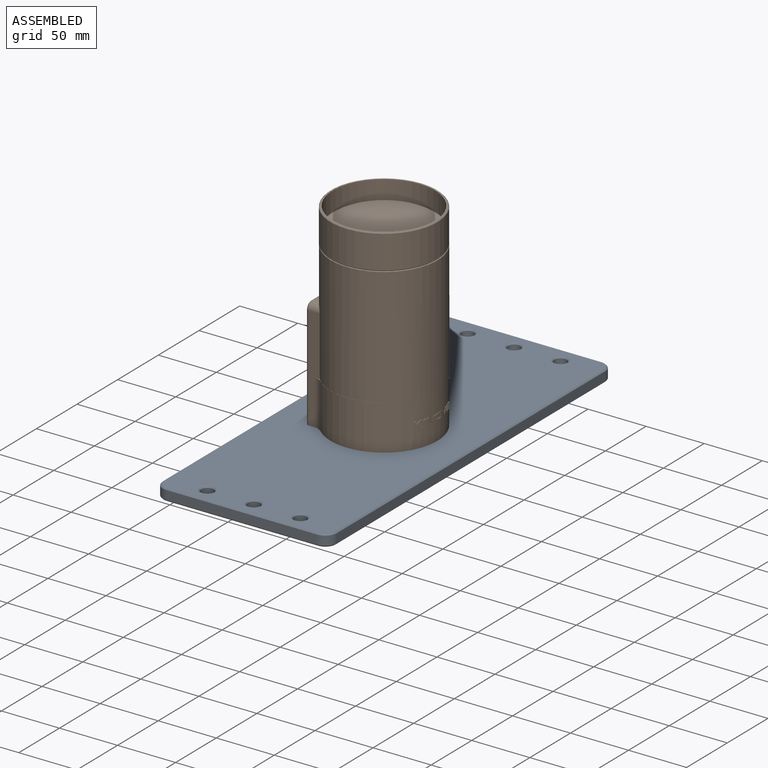
[diagram: assembled view]
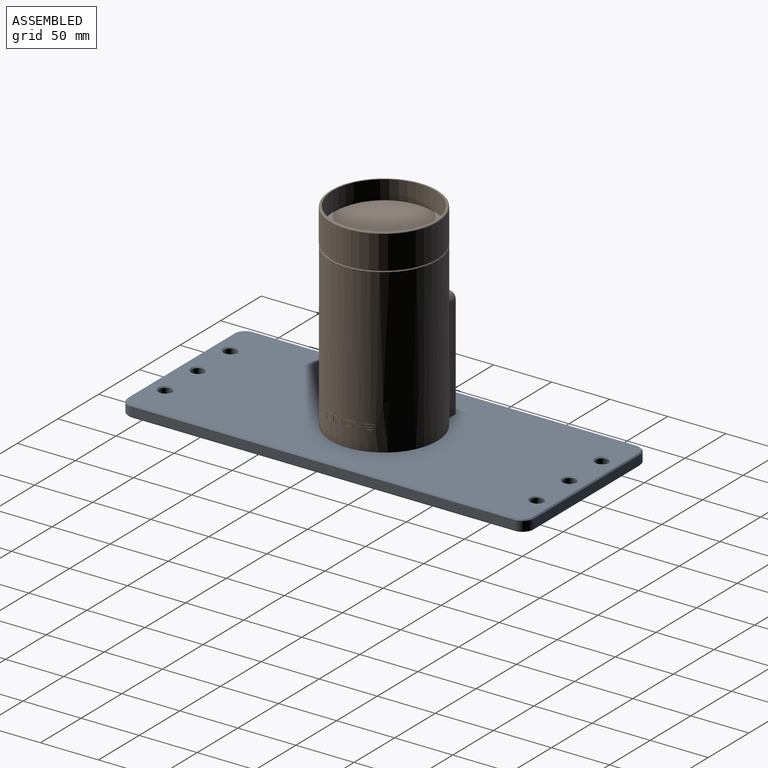
[diagram: assembled view, second angle]
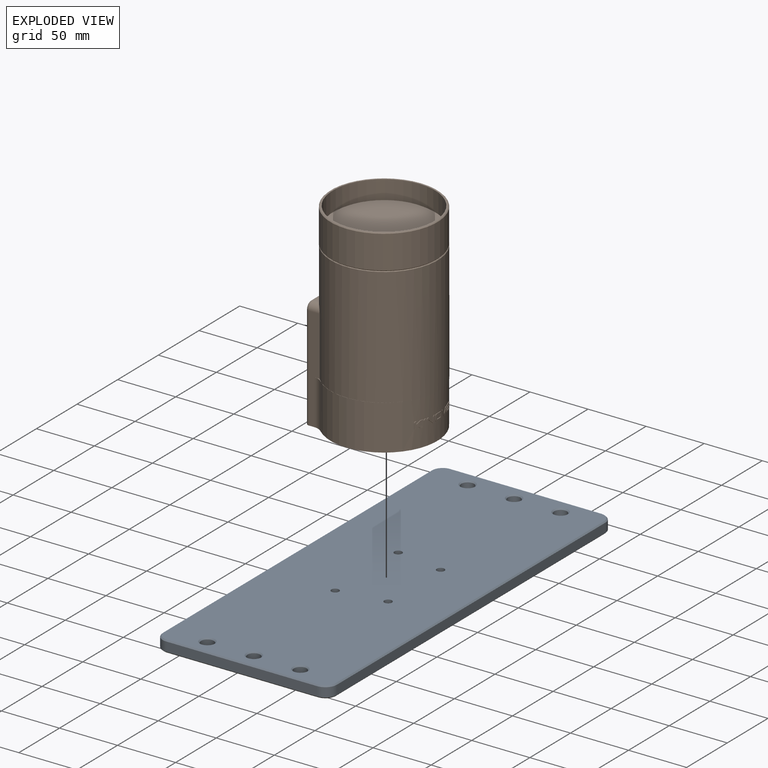
[diagram: exploded view]
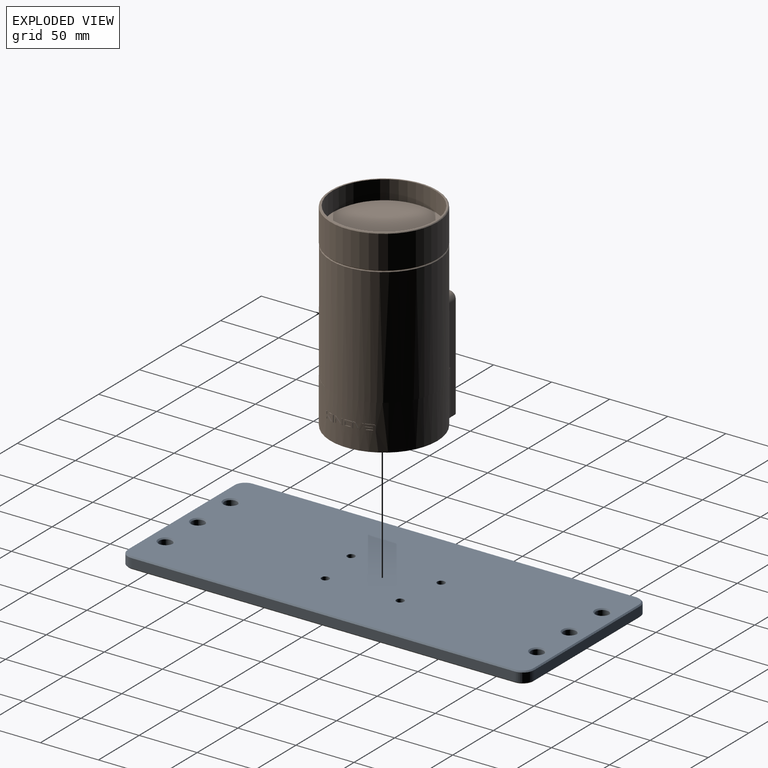
[diagram: exploded view, second angle]
ASSEMBLY  parts=2 mates=2
PART A: 66 faces, bbox 150x350x10 mm
  f0: plane 348x148mm, normal (0,0,1), area 50698.3mm2, adj f10,f11,f12,f13,f14,f15,f16,f17
  f1: plane 348x148mm, normal (0,0,-1), area 50501.2mm2, adj f18,f19,f20,f21,f22,f23,f24,f25
  f2: plane 330x8mm, normal (1,0,0), area 2640mm2, adj f7,f8,f17,f25
  f3: plane 130x8mm, normal (0,1,0), area 1040mm2, adj f8,f9,f14,f22
  f4: plane 330x8mm, normal (-1,0,0), area 2640mm2, adj f6,f9,f10,f18
  f5: plane 130x8mm, normal (0,-1,0), area 1040mm2, adj f6,f7,f13,f21
  f6: cylinder r=10mm len=10mm, axis (0,0,-1), area 125.7mm2, adj f4,f5,f11,f19
  f7: cylinder r=10mm len=10mm, axis (0,0,-1), area 125.7mm2, adj f2,f5,f15,f23
  f8: cylinder r=10mm len=10mm, axis (0,0,-1), area 125.7mm2, adj f2,f3,f16,f24
  f9: cylinder r=10mm len=10mm, axis (0,0,-1), area 125.7mm2, adj f3,f4,f12,f20
  f10: plane 330x1mm, normal (-0.71,0,0.71), area 466.7mm2, adj f0,f4,f11,f12
  f11: cone r=9mm half-angle=45deg, axis (0,0,-1), area 21.1mm2, adj f0,f6,f10,f13
  f12: cone r=9mm half-angle=45deg, axis (0,0,-1), area 21.1mm2, adj f0,f9,f10,f14
  f13: plane 130x1mm, normal (0,-0.71,0.71), area 183.8mm2, adj f0,f5,f11,f15
  f14: plane 130x1mm, normal (0,0.71,0.71), area 183.8mm2, adj f0,f3,f12,f16
  f15: cone r=9mm half-angle=45deg, axis (0,0,-1), area 21.1mm2, adj f0,f7,f13,f17
  f16: cone r=9mm half-angle=45deg, axis (0,0,-1), area 21.1mm2, adj f0,f8,f14,f17
  f17: plane 330x1mm, normal (0.71,0,0.71), area 466.7mm2, adj f0,f2,f15,f16
  f18: plane 330x1mm, normal (-0.71,0,-0.71), area 466.7mm2, adj f1,f4,f19,f20
  f19: cone r=9mm half-angle=45deg, axis (0,0,1), area 21.1mm2, adj f1,f6,f18,f21
  f20: cone r=9mm half-angle=45deg, axis (0,0,1), area 21.1mm2, adj f1,f9,f18,f22
  f21: plane 130x1mm, normal (0,-0.71,-0.71), area 183.8mm2, adj f1,f5,f19,f23
  f22: plane 130x1mm, normal (0,0.71,-0.71), area 183.8mm2, adj f1,f3,f20,f24
  f23: cone r=9mm half-angle=45deg, axis (0,0,1), area 21.1mm2, adj f1,f7,f21,f25
  f24: cone r=9mm half-angle=45deg, axis (0,0,1), area 21.1mm2, adj f1,f8,f22,f25
  f25: plane 330x1mm, normal (0.71,0,-0.71), area 466.7mm2, adj f1,f2,f23,f24
  f26: cylinder r=3.3mm len=6.6mm, axis (0,0,1), area 82.9mm2, adj f1,f27
  f27: plane 11x11mm, normal (0,0,1), area 60.8mm2, adj f26,f28
  f28: cylinder r=5.5mm len=11mm, axis (0,0,1), area 172.8mm2, adj f27,f57
  f29: cylinder r=3.3mm len=6.6mm, axis (0,0,1), area 82.9mm2, adj f1,f30
  f30: plane 11x11mm, normal (0,0,1), area 60.8mm2, adj f29,f31
  f31: cylinder r=5.5mm len=11mm, axis (0,0,1), area 172.8mm2, adj f30,f56
  f32: cylinder r=3.3mm len=6.6mm, axis (0,0,1), area 82.9mm2, adj f1,f33
  f33: plane 11x11mm, normal (0,0,1), area 60.8mm2, adj f32,f34
  f34: cylinder r=5.5mm len=11mm, axis (0,0,1), area 172.8mm2, adj f33,f59
  f35: cylinder r=3.3mm len=6.6mm, axis (0,0,1), area 82.9mm2, adj f1,f36
  f36: plane 11x11mm, normal (0,0,1), area 60.8mm2, adj f35,f37
  f37: cylinder r=5.5mm len=11mm, axis (0,0,1), area 172.8mm2, adj f36,f58
  f38: cylinder r=3.3mm len=6.6mm, axis (0,0,-1), area 82.9mm2, adj f0,f39
  f39: plane 11x11mm, normal (0,0,-1), area 60.8mm2, adj f38,f40
  f40: cylinder r=5.5mm len=11mm, axis (0,0,-1), area 172.8mm2, adj f39,f65
  f41: cylinder r=3.3mm len=6.6mm, axis (0,0,-1), area 82.9mm2, adj f0,f42
  f42: plane 11x11mm, normal (0,0,-1), area 60.8mm2, adj f41,f43
  f43: cylinder r=5.5mm len=11mm, axis (0,0,-1), area 172.8mm2, adj f42,f60
  f44: cylinder r=3.3mm len=6.6mm, axis (0,0,-1), area 82.9mm2, adj f0,f45
  f45: plane 11x11mm, normal (0,0,-1), area 60.8mm2, adj f44,f46
  f46: cylinder r=5.5mm len=11mm, axis (0,0,-1), area 172.8mm2, adj f45,f61
  f47: cylinder r=3.3mm len=6.6mm, axis (0,0,-1), area 82.9mm2, adj f0,f48
  f48: plane 11x11mm, normal (0,0,-1), area 60.8mm2, adj f47,f49
  f49: cylinder r=5.5mm len=11mm, axis (0,0,-1), area 172.8mm2, adj f48,f62
  f50: cylinder r=3.3mm len=6.6mm, axis (0,0,-1), area 82.9mm2, adj f0,f51
  f51: plane 11x11mm, normal (0,0,-1), area 60.8mm2, adj f50,f52
  f52: cylinder r=5.5mm len=11mm, axis (0,0,-1), area 172.8mm2, adj f51,f63
  f53: cylinder r=3.3mm len=6.6mm, axis (0,0,-1), area 82.9mm2, adj f0,f54
  f54: plane 11x11mm, normal (0,0,-1), area 60.8mm2, adj f53,f55
  f55: cylinder r=5.5mm len=11mm, axis (0,0,-1), area 172.8mm2, adj f54,f64
  f56: cone r=5.5mm half-angle=45deg, axis (0,0,1), area 53.3mm2, adj f0,f31
  f57: cone r=5.5mm half-angle=45deg, axis (0,0,1), area 53.3mm2, adj f0,f28
  f58: cone r=5.5mm half-angle=45deg, axis (0,0,1), area 53.3mm2, adj f0,f37
  f59: cone r=5.5mm half-angle=45deg, axis (0,0,1), area 53.3mm2, adj f0,f34
  f60: cone r=5.5mm half-angle=45deg, axis (0,0,-1), area 53.3mm2, adj f1,f43
  f61: cone r=5.5mm half-angle=45deg, axis (0,0,-1), area 53.3mm2, adj f1,f46
  f62: cone r=5.5mm half-angle=45deg, axis (0,0,-1), area 53.3mm2, adj f1,f49
  f63: cone r=5.5mm half-angle=45deg, axis (0,0,-1), area 53.3mm2, adj f1,f52
  f64: cone r=5.5mm half-angle=45deg, axis (0,0,-1), area 53.3mm2, adj f1,f55
  f65: cone r=5.5mm half-angle=45deg, axis (0,0,-1), area 53.3mm2, adj f1,f40
PART B: 298 faces, bbox 93x171x93 mm
  f0: cone r=46mm half-angle=45deg, axis (0,-1,0), area 243.6mm2, adj f5,f166
  f1: cone r=45.4mm half-angle=45deg, axis (0,1,0), area 232.8mm2, adj f5,f15,f165
  f2: cone r=40mm half-angle=45deg, axis (0,1,0), area 359.9mm2, adj f3,f170
  f3: cylinder r=40mm len=80mm, axis (0,1,0), area 848.2mm2, adj f2,f167
  f4: cylinder r=44mm len=88mm, axis (0,-1,0), area 6443.7mm2, adj f166,f168,f169,f170
  f5: cylinder r=46mm len=92mm, axis (0,-1,0), area 8266.2mm2, adj f0,f1
  f6: cone r=2.5mm half-angle=59deg, axis (0,-1,0), area 22.9mm2, adj f24
  f7: cone r=1.25mm half-angle=59deg, axis (0,-1,0), area 5.7mm2, adj f23
  f8: cone r=2.5mm half-angle=59deg, axis (0,-1,0), area 22.9mm2, adj f22
  f9: cone r=1.25mm half-angle=59deg, axis (0,-1,0), area 5.7mm2, adj f21
  f10: cone r=2.5mm half-angle=59deg, axis (0,-1,0), area 22.9mm2, adj f20
  f11: cone r=1.25mm half-angle=59deg, axis (0,-1,0), area 5.7mm2, adj f19
  f12: cone r=1.25mm half-angle=59deg, axis (0,-1,0), area 5.7mm2, adj f18
  f13: cone r=2.5mm half-angle=59deg, axis (0,-1,0), area 22.9mm2, adj f17
  f14: cylinder r=46mm len=101.65mm, axis (0,-1,0), area 25590.9mm2, adj f15,f25,f26,f34,f37,f146,f147,f148
  f15: cone r=45.4mm half-angle=45deg, axis (0,-1,0), area 254.5mm2, adj f1,f14,f165
  f16: cylinder r=46mm len=92mm, axis (0,-1,0), area 8118.8mm2, adj f25,f29,f35,f36,f39,f40,f41,f42
  f17: cylinder r=2.5mm len=16.8mm, axis (0,-1,0), area 263.9mm2, adj f13,f29
  f18: cylinder r=1.25mm len=9.3mm, axis (0,-1,0), area 73mm2, adj f12,f29
  f19: cylinder r=1.25mm len=9.3mm, axis (0,-1,0), area 73mm2, adj f11,f29
  f20: cylinder r=2.5mm len=16.8mm, axis (0,-1,0), area 263.9mm2, adj f10,f29
  f21: cylinder r=1.25mm len=9.3mm, axis (0,-1,0), area 73mm2, adj f9,f29
  f22: cylinder r=2.5mm len=16.8mm, axis (0,-1,0), area 263.9mm2, adj f8,f29
  f23: cylinder r=1.25mm len=9.3mm, axis (0,-1,0), area 73mm2, adj f7,f29
  f24: cylinder r=2.5mm len=16.8mm, axis (0,-1,0), area 263.9mm2, adj f6,f29
  f25: plane 80.95x29.16mm, normal (0,1,0), area 13.2mm2, adj f14,f16,f36,f37
  f26: plane 6x2mm, normal (0,1,0), area 1.9mm2, adj f14,f34,f35
  f27: plane 2x0.1mm, normal (0,1,0), area 0.2mm2, adj f31,f158,f159,f162
  f28: plane 2x0.1mm, normal (0,1,0), area 0.2mm2, adj f32,f160,f161,f163
  f29: plane 92.05x92mm, normal (0,-1,0), area 6786.3mm2, adj f16,f17,f18,f19,f20,f21,f22,f23
  f30: cylinder r=3mm len=89.3mm, axis (0,-1,0), area 420.8mm2, adj f29,f31,f37,f144,f159
  f31: plane 38.8x0.1mm, normal (1,0,0), area 3.9mm2, adj f27,f29,f30,f162
  f32: plane 38.8x0.1mm, normal (1,0,0), area 3.9mm2, adj f28,f29,f33,f163
  f33: cylinder r=3mm len=89.3mm, axis (0,-1,0), area 420.8mm2, adj f29,f32,f34,f145,f161
  f34: plane 89.3x8.93mm, normal (0,0,1), area 639.6mm2, adj f14,f26,f29,f33,f35,f150
  f35: cylinder r=10mm len=38.8mm, axis (0,-1,0), area 290.7mm2, adj f16,f26,f29,f34,f164
  f36: cylinder r=10mm len=38.8mm, axis (0,-1,0), area 290.7mm2, adj f16,f25,f29,f37
  f37: plane 89.3x9.22mm, normal (0,0,-1), area 654mm2, adj f14,f25,f29,f30,f36,f146
  f38: cylinder r=46.45mm len=6.92mm, axis (0,-1,0), area 23.9mm2, adj f39,f40,f41,f42,f43,f44,f45,f46
  f39: plane 0.57x0.18mm, normal (0,0.79,0.62), area 0.1mm2, adj f16,f38,f40,f60
  f40: plane 0.51x0.06mm, normal (0,-0.78,0.62), area 0mm2, adj f16,f38,f39,f41
  f41: plane 3.69x2.9mm, normal (0,-0.79,0.62), area 2.2mm2, adj f16,f38,f40,f42
  f42: plane 1.86x1.14mm, normal (0,1,0), area 0.9mm2, adj f16,f38,f41,f43
  f43: extruded ~0.82x0.8mm, area 0.4mm2, adj f16,f38,f42,f44
  f44: plane 2.81x2.13mm, normal (0,0.8,-0.6), area 1.7mm2, adj f16,f38,f43,f45
  f45: plane 2.47x0.5mm, normal (0,0,1), area 1.2mm2, adj f16,f38,f44,f46
  f46: plane 0.57x0.14mm, normal (0,1,0), area 0.1mm2, adj f16,f38,f45,f47
  f47: cylinder r=1.31mm len=1.31mm, axis (-1,0,0), area 1mm2, adj f16,f38,f46,f48
  f48: plane 4.13x0.51mm, normal (0,0,-1), area 2.1mm2, adj f16,f38,f47,f49
  f49: extruded ~0.51x0.48mm, area 0.2mm2, adj f16,f38,f48,f50
  f50: plane 1.45x1.23mm, normal (0,-1,0), area 0.7mm2, adj f16,f38,f49,f51
  f51: extruded ~0.5x0.31mm, area 0.2mm2, adj f16,f38,f50,f52
  f52: plane 0.66x0.5mm, normal (0,0,1), area 0.3mm2, adj f16,f38,f51,f53
  f53: extruded ~0.93x0.68mm, area 0.5mm2, adj f16,f38,f52,f54
  f54: cylinder r=1.22mm len=0.56mm, axis (1,0,0), area 0.1mm2, adj f16,f38,f53,f55
  f55: plane 0.59x0.21mm, normal (0,-0.8,-0.6), area 0.1mm2, adj f16,f38,f54,f56
  f56: plane 0.81x0.71mm, normal (0,-0.8,-0.6), area 0.4mm2, adj f16,f38,f55,f57
  f57: plane 1.34x1.05mm, normal (0,-0.8,-0.6), area 0.8mm2, adj f16,f38,f56,f58
  f58: extruded ~0.82x0.8mm, area 0.4mm2, adj f16,f38,f57,f59
  f59: plane 1.86x1.14mm, normal (0,-1,0), area 0.9mm2, adj f16,f38,f58,f60
  f60: plane 3.58x2.8mm, normal (0,0.79,0.62), area 2.2mm2, adj f16,f38,f39,f59
  f61: plane 1.61x0.51mm, normal (0,0,1), area 0.8mm2, adj f16,f62,f75,f76
  f62: plane 6.65x3.33mm, normal (0,-1,0), area 3.3mm2, adj f16,f61,f63,f76
  f63: cylinder r=1.31mm len=1.31mm, axis (-1,0,0), area 1mm2, adj f16,f62,f64,f76
  f64: plane 0.96x0.47mm, normal (0,0,-1), area 0.4mm2, adj f16,f63,f65,f76
  f65: extruded ~1.32x1.31mm, area 1mm2, adj f16,f64,f66,f76
  f66: plane 5.2x2.6mm, normal (0,1,0), area 2.5mm2, adj f16,f65,f67,f76
  f67: plane 0.68x0.5mm, normal (0,0,-1), area 0.3mm2, adj f16,f66,f68,f76
  f68: cylinder r=0.14mm len=0.57mm, axis (1,0,0), area 0.1mm2, adj f16,f67,f69,f76
  f69: plane 6.19x2.9mm, normal (0,-1,0), area 3mm2, adj f16,f68,f70,f76
  f70: plane 0.47x0.14mm, normal (0,0,-1), area 0.1mm2, adj f16,f69,f71,f76
  f71: cylinder r=1.31mm len=1.31mm, axis (-1,0,0), area 1mm2, adj f16,f70,f72,f76
  f72: plane 5.16x2.61mm, normal (0,1,0), area 2.5mm2, adj f16,f71,f73,f76
  f73: cylinder r=1.31mm len=1.31mm, axis (-1,0,0), area 1mm2, adj f16,f72,f74,f76
  f74: plane 2.93x0.51mm, normal (0,0,1), area 1.5mm2, adj f16,f73,f75,f76
  f75: plane 0.51x0mm, normal (0,0.89,-0.45), area 0mm2, adj f16,f61,f74,f76
  f76: cylinder r=46.45mm len=7.96mm, axis (0,-1,0), area 38.3mm2, adj f61,f62,f63,f64,f65,f66,f67,f68
  f77: plane 4.77x2.44mm, normal (0,-1,0), area 2.3mm2, adj f76,f78,f83,f141
  f78: cylinder r=0.14mm len=0.57mm, axis (-1,0,0), area 0.1mm2, adj f76,f77,f79,f141
  f79: plane 0.68x0.5mm, normal (0,0,-1), area 0.3mm2, adj f76,f78,f80,f141
  f80: plane 4.92x2.51mm, normal (0,1,0), area 2.4mm2, adj f76,f79,f81,f141
  f81: cylinder r=0.14mm len=0.52mm, axis (-1,0,0), area 0.1mm2, adj f76,f80,f82,f141
  f82: plane 0.54x0.48mm, normal (0,0,1), area 0.3mm2, adj f76,f81,f83,f141
  f83: cylinder r=0.14mm len=0.53mm, axis (-1,0,0), area 0.1mm2, adj f76,f77,f82,f141
  f84: cylinder r=46.45mm len=5.92mm, axis (0,-1,0), area 8.5mm2, adj f85,f86,f87,f88,f89
  f85: cylinder r=1.31mm len=1.31mm, axis (-1,0,0), area 1mm2, adj f16,f84,f86,f89
  f86: plane 4.61x0.47mm, normal (0,0,-1), area 2.2mm2, adj f16,f84,f85,f87
  f87: plane 1.45x0.9mm, normal (0,-1,0), area 0.7mm2, adj f16,f84,f86,f88
  f88: plane 5.92x0.47mm, normal (0,0,1), area 2.8mm2, adj f16,f84,f87,f89
  f89: plane 0.51x0.14mm, normal (0,1,0), area 0.1mm2, adj f16,f84,f85,f88
  f90: cylinder r=46.45mm len=7.81mm, axis (0,-1,0), area 25.4mm2, adj f91,f92,f93,f94,f95,f96,f97,f98
  f91: cylinder r=1.31mm len=1.31mm, axis (-1,0,0), area 0.9mm2, adj f16,f90,f92,f109
  f92: plane 2.88x0.45mm, normal (0,0,-1), area 1.3mm2, adj f16,f90,f91,f93
  f93: plane 0.45x0mm, normal (0,0.24,0.97), area 0mm2, adj f16,f90,f92,f94
  f94: plane 0.45x0mm, normal (0,0,-1), area 0mm2, adj f16,f90,f93,f95
  f95: plane 4.02x3.64mm, normal (0,0.74,0.67), area 2.5mm2, adj f16,f90,f94,f96
  f96: cylinder r=1.72mm len=0.47mm, axis (1,0,0), area 0mm2, adj f16,f90,f95,f97
  f97: extruded ~0.96x0.66mm, area 0.5mm2, adj f16,f90,f96,f98
  f98: plane 0.47x0.02mm, normal (0,1,0.02), area 0mm2, adj f16,f90,f97,f99
  f99: cylinder r=1.31mm len=1.31mm, axis (-1,0,0), area 1mm2, adj f16,f90,f98,f100
  f100: plane 4.55x0.46mm, normal (0,0,-1), area 2.1mm2, adj f16,f90,f99,f101
  f101: plane 0.5x0.14mm, normal (0,-1,0), area 0.1mm2, adj f16,f90,f100,f102
  f102: cylinder r=1.31mm len=1.31mm, axis (-1,0,0), area 1mm2, adj f16,f90,f101,f103
  f103: plane 2.92x0.46mm, normal (0,0,1), area 1.3mm2, adj f16,f90,f102,f104
  f104: plane 4.34x3.94mm, normal (0,-0.74,-0.67), area 2.7mm2, adj f16,f90,f103,f105
  f105: cylinder r=1.07mm len=0.7mm, axis (-1,0,0), area 0.3mm2, adj f16,f90,f104,f106
  f106: plane 0.45x0.01mm, normal (0,-1,0), area 0mm2, adj f16,f90,f105,f107
  f107: cylinder r=1.31mm len=1.31mm, axis (-1,0,0), area 0.9mm2, adj f16,f90,f106,f108
  f108: plane 4.59x0.45mm, normal (0,0,1), area 2.1mm2, adj f16,f90,f107,f109
  f109: plane 0.46x0.14mm, normal (0,1,0), area 0.1mm2, adj f16,f90,f91,f108
  f110: cylinder r=46.45mm len=8.05mm, axis (0,-1,0), area 17.9mm2, adj f111,f112,f113,f114,f115,f116,f117,f119
  f111: plane 3.59x2.02mm, normal (0,0.49,-0.87), area 1.9mm2, adj f16,f110,f112,f123
  f112: plane 3.64x2.04mm, normal (0,0.49,0.87), area 1.9mm2, adj f16,f110,f111,f113
  f113: extruded ~1.11x0.62mm, area 0.6mm2, adj f16,f110,f112,f114
  f114: plane 0.87x0.57mm, normal (0,1,0), area 0.4mm2, adj f16,f110,f113,f115
  f115: plane 5.24x2.94mm, normal (0,-0.49,-0.87), area 2.7mm2, adj f16,f110,f114,f116
  f116: plane 0.46x0.03mm, normal (0,-0.51,-0.86), area 0mm2, adj f16,f110,f115,f117
  f117: extruded ~1.07x0.67mm, area 0.6mm2, adj f16,f110,f116,f118
  f118: plane 0.46x0mm, normal (0,-1,0), area 0mm2, adj f117,f119
  f119: extruded ~1.07x0.7mm, area 0.6mm2, adj f16,f110,f118,f120
  f120: plane 0.46x0.02mm, normal (0,-0.54,0.84), area 0mm2, adj f16,f110,f119,f121
  f121: plane 5.25x2.95mm, normal (0,-0.49,0.87), area 2.8mm2, adj f16,f110,f120,f122
  f122: plane 0.87x0.73mm, normal (0,1,0), area 0.4mm2, adj f16,f110,f121,f123
  f123: extruded ~1.14x0.77mm, area 0.6mm2, adj f16,f110,f111,f122
  f124: cylinder r=1.31mm len=1.31mm, axis (-1,0,0), area 0.9mm2, adj f16,f125,f131,f140
  f125: plane 5.19x0.62mm, normal (0,1,0), area 2.3mm2, adj f16,f124,f126,f140
  f126: cylinder r=1.31mm len=1.31mm, axis (-1,0,0), area 0.9mm2, adj f16,f125,f127,f140
  f127: plane 3.23x0.45mm, normal (0,0,-1), area 1.5mm2, adj f16,f126,f128,f140
  f128: cylinder r=1.31mm len=1.31mm, axis (-1,0,0), area 0.9mm2, adj f16,f127,f129,f140
  f129: plane 5.19x0.62mm, normal (0,-1,0), area 2.3mm2, adj f16,f128,f130,f140
  f130: cylinder r=1.31mm len=1.31mm, axis (-1,0,0), area 0.9mm2, adj f16,f129,f131,f140
  f131: plane 3.23x0.45mm, normal (0,0,1), area 1.5mm2, adj f16,f124,f130,f140
  f132: cylinder r=0.15mm len=0.46mm, axis (-1,0,0), area 0.1mm2, adj f133,f139,f140,f142
  f133: plane 2.65x0.45mm, normal (0,0,-1), area 1.2mm2, adj f132,f134,f140,f142
  f134: cylinder r=0.15mm len=0.46mm, axis (-1,0,0), area 0.1mm2, adj f133,f135,f140,f142
  f135: plane 4.62x0.59mm, normal (0,-1,0), area 2.1mm2, adj f134,f136,f140,f142
  f136: cylinder r=0.15mm len=0.45mm, axis (-1,0,0), area 0.1mm2, adj f135,f137,f140,f142
  f137: plane 2.65x0.45mm, normal (0,0,1), area 1.2mm2, adj f136,f138,f140,f142
  f138: cylinder r=0.15mm len=0.45mm, axis (-1,0,0), area 0.1mm2, adj f137,f139,f140,f142
  f139: plane 4.62x0.59mm, normal (0,1,0), area 2.1mm2, adj f132,f138,f140,f142
  f140: cylinder r=46.45mm len=7.81mm, axis (0,-1,0), area 29.8mm2, adj f124,f125,f126,f127,f128,f129,f130,f131
  f141: cylinder r=46mm len=5.06mm, axis (0,-1,0), area 4.5mm2, adj f77,f78,f79,f80,f81,f82,f83
  f142: cylinder r=46mm len=4.92mm, axis (0,-1,0), area 14.5mm2, adj f132,f133,f134,f135,f136,f137,f138,f139
  f143: plane 92.2x55.8mm, normal (1,0,0), area 5140.9mm2, adj f29,f151,f156,f157,f162,f163
  f144: torus R=3mm, axis (-1,0,0), area 36.3mm2, adj f30,f146,f148,f152
  f145: torus R=3mm, axis (-1,0,0), area 36.3mm2, adj f33,f148,f150,f153
  f146: cylinder r=6mm len=9.22mm, axis (1,0,0), area 64.9mm2, adj f14,f37,f144,f147
  f147: plane 8.98x4.55mm, normal (0,1,0), area 18.6mm2, adj f14,f146,f148
  f148: cylinder r=3mm len=50mm, axis (0,0,1), area 158.5mm2, adj f14,f144,f145,f147,f149,f154
  f149: plane 8.67x4.35mm, normal (0,1,0), area 17.2mm2, adj f14,f148,f150
  f150: cylinder r=6mm len=8.93mm, axis (-1,0,0), area 62.6mm2, adj f14,f34,f145,f149
  f151: cylinder r=3mm len=3mm, axis (1,0,0), area 9.7mm2, adj f143,f156,f158,f162
  f152: cylinder r=3mm len=3mm, axis (1,0,0), area 9.4mm2, adj f144,f154,f158,f159
  f153: cylinder r=3mm len=3mm, axis (1,0,0), area 9.4mm2, adj f145,f154,f160,f161
  f154: plane 50x2mm, normal (0,-1,0), area 65.7mm2, adj f148,f152,f153,f155,f158,f160
  f155: cylinder r=46mm len=26.42mm, axis (0,-1,0), area 2.7mm2, adj f154,f156,f158,f160
  f156: plane 49.8x2.05mm, normal (0,1,0), area 67.9mm2, adj f143,f151,f155,f157,f158,f160
  f157: cylinder r=3mm len=3mm, axis (1,0,0), area 9.7mm2, adj f143,f156,f160,f163
  f158: plane 53.5x14.95mm, normal (1,0,0), area 6.8mm2, adj f27,f151,f152,f154,f155,f156,f159,f162
  f159: plane 50.5x2mm, normal (0,0,1), area 101mm2, adj f27,f30,f152,f158
  f160: plane 53.5x14.63mm, normal (1,0,0), area 6.8mm2, adj f28,f153,f154,f155,f156,f157,f161,f163
  f161: plane 50.5x2mm, normal (0,0,-1), area 101mm2, adj f28,f33,f153,f160
  f162: plane 89.2x2.05mm, normal (0,0,-1), area 105.5mm2, adj f27,f29,f31,f143,f151,f158
  f163: plane 89.2x2.05mm, normal (0,0,1), area 105.5mm2, adj f28,f29,f32,f143,f157,f160
  f164: plane 78.21x63mm, normal (0,-1,0), area 14.8mm2, adj f14,f16,f35
  f165: plane 87.65x62.18mm, normal (0,-1,0), area 15.3mm2, adj f1,f15
  f166: plane 90.8x90.8mm, normal (0,1,0), area 393.2mm2, adj f0,f4
  f167: plane 80x80mm, normal (0,1,0), area 5026.5mm2, adj f3
  f168: plane 84.95x60.26mm, normal (0,1,0), area 14.8mm2, adj f4,f169
  f169: cylinder r=44mm len=84.88mm, axis (0,1,0), area 1794.8mm2, adj f4,f168,f170
  f170: plane 87.94x87.84mm, normal (0,1,0), area 786.3mm2, adj f2,f4,f169
  f171: cylinder r=1.25mm len=3.5mm, axis (1,0,0), area 27.5mm2, adj f172,f173
  f172: cone r=1.25mm half-angle=59deg, axis (1,0,0), area 5.7mm2, adj f171
  f173: plane 2.5x2.5mm, normal (-1,0,0), area 4.9mm2, adj f171
  f174: cylinder r=1.25mm len=3.5mm, axis (1,0,0), area 27.5mm2, adj f175,f176
  f175: cone r=1.25mm half-angle=59deg, axis (1,0,0), area 5.7mm2, adj f174
  f176: plane 2.5x2.5mm, normal (-1,0,0), area 4.9mm2, adj f174
  f177: torus R=50mm, axis (0,1,0), area 719.2mm2, adj f178,f179
  f178: cylinder r=40mm len=80mm, axis (0,1,0), area 707.1mm2, adj f177,f179
  f179: plane 80.81x80.81mm, normal (0,1,0), area 102mm2, adj f177,f178
  f180: cylinder r=2.5mm len=5mm, axis (0,-1,0), area 6.2mm2, adj f181,f182,f183
  f181: plane 5x5mm, normal (0,-1,0), area 19.6mm2, adj f180,f182
  f182: torus R=40.7mm, axis (0,1,0), area 5.3mm2, adj f180,f181,f183
  f183: plane 4.87x4.65mm, normal (0,1,0), area 13.9mm2, adj f180,f182
  f184: cylinder r=1.25mm len=2.5mm, axis (0,-1,0), area 3.9mm2, adj f185,f186,f187
  f185: plane 2.5x2.5mm, normal (0,-1,0), area 4.9mm2, adj f184
  f186: torus R=40.7mm, axis (0,1,0), area 0.6mm2, adj f184,f187
  f187: plane 2.5x2.43mm, normal (0,1,0), area 4.3mm2, adj f184,f186
  f188: cylinder r=2.5mm len=5mm, axis (0,-1,0), area 7.9mm2, adj f189,f190
  f189: plane 5x5mm, normal (0,-1,0), area 19.6mm2, adj f188
  f190: plane 5x5mm, normal (0,1,0), area 19.6mm2, adj f188
  f191: cylinder r=1.25mm len=2.5mm, axis (0,-1,0), area 3.9mm2, adj f192,f193
  f192: plane 2.5x2.5mm, normal (0,-1,0), area 4.9mm2, adj f191
  f193: plane 2.5x2.5mm, normal (0,1,0), area 4.9mm2, adj f191
  f194: cylinder r=2.5mm len=5mm, axis (0,-1,0), area 7.9mm2, adj f195,f196
  f195: plane 5x5mm, normal (0,-1,0), area 19.6mm2, adj f194
  f196: plane 5x5mm, normal (0,1,0), area 19.6mm2, adj f194
  f197: cylinder r=1.25mm len=2.5mm, axis (0,-1,0), area 3.9mm2, adj f198,f199
  f198: plane 2.5x2.5mm, normal (0,-1,0), area 4.9mm2, adj f197
  f199: plane 2.5x2.5mm, normal (0,1,0), area 4.9mm2, adj f197
  f200: cylinder r=1.25mm len=2.5mm, axis (0,-1,0), area 3.9mm2, adj f201,f202,f203
  f201: plane 2.5x2.5mm, normal (0,-1,0), area 4.9mm2, adj f200
  f202: torus R=40.7mm, axis (0,1,0), area 0.6mm2, adj f200,f203
  f203: plane 2.5x2.43mm, normal (0,1,0), area 4.3mm2, adj f200,f202
  f204: cylinder r=2.5mm len=5mm, axis (0,-1,0), area 6.2mm2, adj f205,f206,f207
  f205: plane 5x5mm, normal (0,-1,0), area 19.6mm2, adj f204,f206
  f206: torus R=40.7mm, axis (0,1,0), area 5.3mm2, adj f204,f205,f207
  f207: plane 4.87x4.65mm, normal (0,1,0), area 13.9mm2, adj f204,f206
  f208: plane 14.04x7mm, normal (0,1,0), area 29mm2, adj f216,f217,f218,f219,f220
  f209: plane 6.24x6.24mm, normal (0,-0.71,-0.71), area 25.2mm2, adj f210,f212,f219,f220
  f210: cylinder r=3mm len=2.12mm, axis (-1,0,0), area 2.4mm2, adj f209,f211,f219,f220
  f211: plane 1.89x0.61mm, normal (0,-1,0), area 0.6mm2, adj f210,f219,f220
  f212: cylinder r=3mm len=4.5mm, axis (-1,0,0), area 10.6mm2, adj f209,f216,f218,f219,f220
  f213: plane 2.58x2.58mm, normal (0,-0.71,-0.71), area 2.9mm2, adj f214,f216,f219
  f214: cylinder r=9.53mm len=6.74mm, axis (-1,0,0), area 20.1mm2, adj f213,f215,f216,f219
  f215: plane 34.64x3.73mm, normal (0,0,-1), area 129.2mm2, adj f214,f216,f217,f219
  f216: plane 49.24x5.37mm, normal (-1,0,0), area 208.6mm2, adj f208,f212,f213,f214,f215,f217,f218,f219
  f217: cylinder r=9.53mm len=5.28mm, axis (-1,0,0), area 17.4mm2, adj f208,f215,f216,f219
  f218: plane 40.76x4.5mm, normal (0,0,-1), area 183.4mm2, adj f208,f212,f216,f220
  f219: cylinder r=46mm len=50mm, axis (0,-1,0), area 831.2mm2, adj f208,f209,f210,f211,f212,f213,f214,f215
  f220: plane 50x11.13mm, normal (-1,0,0), area 524.2mm2, adj f208,f209,f210,f211,f212,f218,f219
  f221: plane 6.24x6.24mm, normal (0,0.71,-0.71), area 10.2mm2, adj f223,f232,f235,f238
  f222: plane 1.87x0.62mm, normal (0,-1,0), area 0.6mm2, adj f225,f229,f240
  f223: cylinder r=4mm len=2.83mm, axis (1,0,0), area 3.2mm2, adj f221,f224,f231,f239,f240
  f224: plane 1.87x0.62mm, normal (0,1,0), area 0.6mm2, adj f223,f230,f240
  f225: cylinder r=6.15mm len=4.35mm, axis (1,0,0), area 5.2mm2, adj f222,f226,f228,f240,f241
  f226: plane 6.24x6.24mm, normal (0,-0.71,0.71), area 10.2mm2, adj f225,f227,f236,f242
  f227: cylinder r=0.1mm len=6.31mm, axis (0,-0.71,-0.71), area 1.4mm2, adj f226,f228,f234,f251
  f228: torus R=6.25mm, axis (1,0,0), area 0.8mm2, adj f225,f227,f229,f251
  f229: cylinder r=0.1mm len=2.2mm, axis (0,0,-1), area 0.3mm2, adj f222,f228,f240,f251
  f230: cylinder r=0.1mm len=2.2mm, axis (0,0,1), area 0.3mm2, adj f224,f231,f240,f251
  f231: torus R=3.9mm, axis (1,0,0), area 0.5mm2, adj f223,f230,f232,f251
  f232: cylinder r=0.1mm len=6.31mm, axis (0,0.71,0.71), area 1.4mm2, adj f221,f231,f233,f251
  f233: torus R=3.9mm, axis (1,0,0), area 0.5mm2, adj f232,f235,f245,f251
  f234: torus R=6.25mm, axis (1,0,0), area 0.8mm2, adj f227,f236,f248,f251
  f235: cylinder r=4mm len=2.83mm, axis (1,0,0), area 3.6mm2, adj f221,f233,f237,f244
  f236: cylinder r=6.15mm len=4.35mm, axis (1,0,0), area 5.6mm2, adj f226,f234,f243,f247
  f237: torus R=4.25mm, axis (1,0,0), area 1.3mm2, adj f235,f238,f246,f250
  f238: cylinder r=0.25mm len=6.42mm, axis (0,-0.71,-0.71), area 3.5mm2, adj f221,f237,f239,f246
  f239: torus R=4.25mm, axis (1,0,0), area 0.5mm2, adj f223,f238,f240,f246
  f240: cylinder r=46mm len=4.24mm, axis (0,-1,0), area 9.7mm2, adj f222,f223,f224,f225,f229,f230,f239,f241
  f241: torus R=5.9mm, axis (1,0,0), area 1.2mm2, adj f225,f240,f242,f246
  f242: cylinder r=0.25mm len=6.42mm, axis (0,0.71,0.71), area 3.5mm2, adj f226,f241,f243,f246
  f243: torus R=5.9mm, axis (1,0,0), area 1.9mm2, adj f236,f242,f246,f249
  f244: plane 40.76x1.15mm, normal (0,0,-1), area 46.9mm2, adj f235,f245,f250,f252
  f245: cylinder r=0.1mm len=40.76mm, axis (0,1,0), area 6.4mm2, adj f233,f244,f251,f252
  f246: plane 52.54x10.11mm, normal (1,0,0), area 91.5mm2, adj f237,f238,f239,f240,f241,f242,f243,f249
  f247: plane 40.76x1.15mm, normal (0,0,1), area 46.9mm2, adj f236,f248,f249,f252
  f248: cylinder r=0.1mm len=40.76mm, axis (0,-1,0), area 6.4mm2, adj f234,f247,f251,f252
  f249: cylinder r=0.25mm len=40.76mm, axis (0,1,0), area 16mm2, adj f243,f246,f247,f252
  f250: cylinder r=0.25mm len=40.76mm, axis (0,-1,0), area 16mm2, adj f237,f244,f246,f252
  f251: plane 53.25x14.7mm, normal (-1,0,0), area 140.4mm2, adj f227,f228,f229,f230,f231,f232,f233,f234
  f252: plane 2.35x1.5mm, normal (0,1,0), area 3.2mm2, adj f244,f245,f246,f247,f248,f249,f250,f251
  f253: plane 6.24x6.24mm, normal (0,-0.71,-0.71), area 10.2mm2, adj f255,f264,f268,f270
  f254: plane 1.56x0.51mm, normal (0,1,0), area 0.4mm2, adj f257,f261,f272
  f255: cylinder r=6.15mm len=4.35mm, axis (1,0,0), area 5mm2, adj f253,f256,f263,f271,f272
  f256: plane 1.56x0.51mm, normal (0,-1,0), area 0.4mm2, adj f255,f262,f272
  f257: cylinder r=4mm len=2.83mm, axis (1,0,0), area 3mm2, adj f254,f258,f260,f272,f273
  f258: plane 6.24x6.24mm, normal (0,0.71,0.71), area 10.2mm2, adj f257,f259,f267,f274
  f259: cylinder r=0.1mm len=6.31mm, axis (0,-0.71,0.71), area 1.4mm2, adj f258,f260,f265,f283
  f260: torus R=3.9mm, axis (1,0,0), area 0.5mm2, adj f257,f259,f261,f283
  f261: cylinder r=0.1mm len=1.89mm, axis (0,0,1), area 0.3mm2, adj f254,f260,f272,f283
  f262: cylinder r=0.1mm len=1.89mm, axis (0,0,-1), area 0.3mm2, adj f256,f263,f272,f283
  f263: torus R=6.25mm, axis (1,0,0), area 0.8mm2, adj f255,f262,f264,f283
  f264: cylinder r=0.1mm len=6.31mm, axis (0,0.71,-0.71), area 1.4mm2, adj f253,f263,f266,f283
  f265: torus R=3.9mm, axis (1,0,0), area 0.5mm2, adj f259,f267,f281,f283
  f266: torus R=6.25mm, axis (1,0,0), area 0.8mm2, adj f264,f268,f277,f283
  f267: cylinder r=4mm len=2.83mm, axis (1,0,0), area 3.6mm2, adj f258,f265,f275,f280
  f268: cylinder r=6.15mm len=4.35mm, axis (1,0,0), area 5.6mm2, adj f253,f266,f269,f276
  f269: torus R=5.9mm, axis (1,0,0), area 1.9mm2, adj f268,f270,f278,f279
  f270: cylinder r=0.25mm len=6.42mm, axis (0,-0.71,0.71), area 3.5mm2, adj f253,f269,f271,f278
  f271: torus R=5.9mm, axis (1,0,0), area 1mm2, adj f255,f270,f272,f278
  f272: cylinder r=46mm len=4.24mm, axis (0,-1,0), area 9.8mm2, adj f254,f255,f256,f257,f261,f262,f271,f273
  f273: torus R=4.25mm, axis (1,0,0), area 0.4mm2, adj f257,f272,f274,f278
  f274: cylinder r=0.25mm len=6.42mm, axis (0,0.71,-0.71), area 3.5mm2, adj f258,f273,f275,f278
  f275: torus R=4.25mm, axis (1,0,0), area 1.3mm2, adj f267,f274,f278,f282
  f276: plane 40.76x1.15mm, normal (0,0,-1), area 46.9mm2, adj f268,f277,f279,f284
  f277: cylinder r=0.1mm len=40.76mm, axis (0,1,0), area 6.4mm2, adj f266,f276,f283,f284
  f278: plane 52.41x9.79mm, normal (1,0,0), area 90.9mm2, adj f269,f270,f271,f272,f273,f274,f275,f279
  f279: cylinder r=0.25mm len=40.76mm, axis (0,-1,0), area 16mm2, adj f269,f276,f278,f284
  f280: plane 40.76x1.15mm, normal (0,0,1), area 46.9mm2, adj f267,f281,f282,f284
  f281: cylinder r=0.1mm len=40.76mm, axis (0,-1,0), area 6.4mm2, adj f265,f280,f283,f284
  f282: cylinder r=0.25mm len=40.76mm, axis (0,1,0), area 16mm2, adj f275,f278,f280,f284
  f283: plane 53.25x14.38mm, normal (-1,0,0), area 139.7mm2, adj f259,f260,f261,f262,f263,f264,f265,f266
  f284: plane 2.35x1.5mm, normal (0,1,0), area 3.2mm2, adj f276,f277,f278,f279,f280,f281,f282,f283
  f285: plane 14.35x7.23mm, normal (0,1,0), area 31.2mm2, adj f293,f294,f295,f296,f297
  f286: cylinder r=3mm len=4.5mm, axis (-1,0,0), area 10.6mm2, adj f289,f294,f296,f297
  f287: plane 2.2x0.72mm, normal (0,-1,0), area 0.8mm2, adj f288,f293,f297
  f288: cylinder r=3mm len=2.12mm, axis (-1,0,0), area 2.7mm2, adj f287,f289,f293,f297
  f289: plane 6.35x6.35mm, normal (0,-0.71,0.71), area 26.5mm2, adj f286,f288,f293,f294,f297
  f290: plane 2.93x2.93mm, normal (0,-0.71,0.71), area 3.7mm2, adj f291,f293,f294
  f291: cylinder r=9.53mm len=6.74mm, axis (-1,0,0), area 21.9mm2, adj f290,f292,f293,f294
  f292: plane 34.64x3.98mm, normal (0,0,1), area 138mm2, adj f291,f293,f294,f295
  f293: cylinder r=46mm len=50mm, axis (0,-1,0), area 847mm2, adj f285,f287,f288,f289,f290,f291,f292,f294
  f294: plane 49.55x5.69mm, normal (-1,0,0), area 210.6mm2, adj f285,f286,f289,f290,f291,f292,f293,f295
  f295: cylinder r=9.53mm len=5.28mm, axis (-1,0,0), area 18.8mm2, adj f285,f292,f293,f294
  f296: plane 40.76x4.5mm, normal (0,0,1), area 183.4mm2, adj f285,f286,f294,f297
  f297: plane 50x11.45mm, normal (-1,0,0), area 539.9mm2, adj f285,f286,f287,f288,f289,f293,f296
PLACE A rot(axis=(0,1,0),180deg) t=(12.64,-40.33,10.41)mm fixed
PLACE B rot(axis=(0,0.71,0.71),180deg) t=(12.64,-40.33,12.21)mm
MATE revolute B.f6 <-> A.f26  axis (0,0,-1) through (38.76,-72.58,10.41)mm
MATE revolute B.f13 <-> A.f29  axis (0,0,-1) through (38.76,-8.08,10.41)mm
